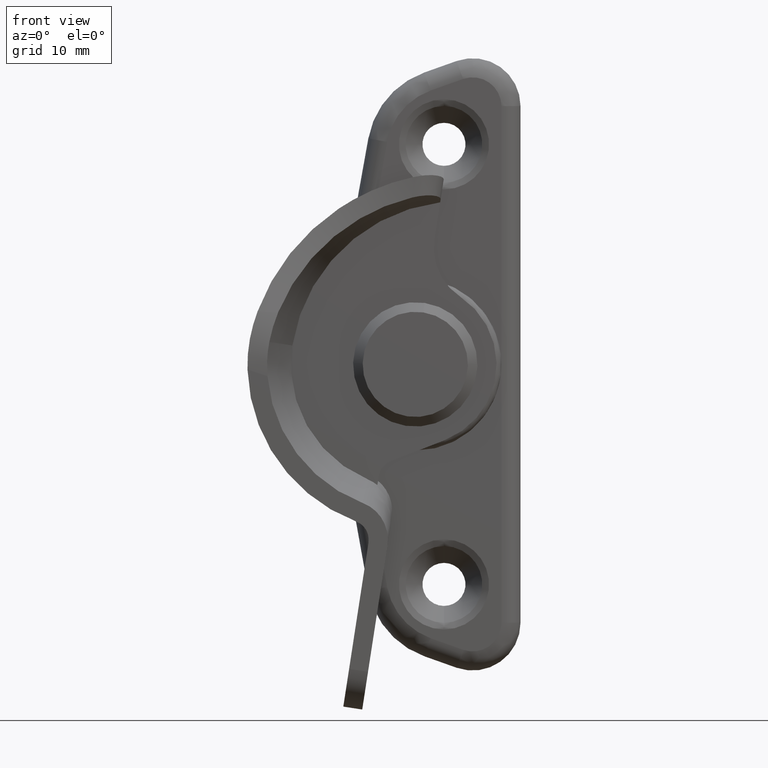
[diagram: clean part render]
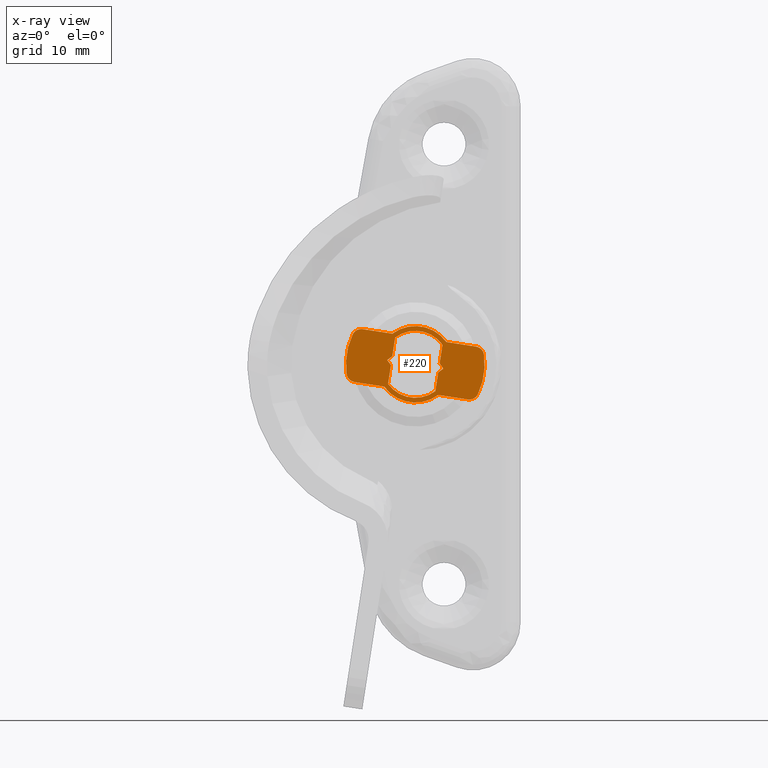
[diagram: x-ray — body ghosted, one internal face saturated and labeled with its STEP entity id]
A machine part, front view, then the same camera in x-ray: the body is ghosted and one INTERNAL B-rep face — a face not visible from any outside direction — is saturated and labeled: STEP entity #220.
In plain terms, the highlighted planar face has unit normal (0, 1, 0).
Its self-contained STEP definition (entity closure, byte-faithful):
#220=ADVANCED_FACE('',(#1047,#1048),#1046,.F.);
#1046=PLANE('',#2702);
#1047=FACE_OUTER_BOUND('',#2703,.T.);
#1048=FACE_BOUND('',#2704,.T.);
#2699=CARTESIAN_POINT('',(-1.40517494774E+01,3.20000000000E+00,-8.08957152702E+00));
#2700=DIRECTION('',(0.00000000000E+00,1.00000000000E+00,0.00000000000E+00));
#2701=DIRECTION('',(-9.88393614580E-01,0.00000000000E+00,1.51914655832E-01));
#2702=AXIS2_PLACEMENT_3D('',#2699,#2700,#2701);
#2703=EDGE_LOOP('',(#4258,#4259,#4260,#4261,#4262,#4263,#4264,#4265,#4266,#4267,#4268,#4269,#4270,#4271,#4272,#4273));
#2704=EDGE_LOOP('',(#4274,#4275,#4276,#4277,#4278,#4279,#4280,#4281,#4282,#4283));
#4258=ORIENTED_EDGE('',*,*,#5015,.F.);
#4259=ORIENTED_EDGE('',*,*,#5016,.F.);
#4260=ORIENTED_EDGE('',*,*,#4950,.F.);
#4261=ORIENTED_EDGE('',*,*,#5017,.T.);
#4262=ORIENTED_EDGE('',*,*,#5018,.T.);
#4263=ORIENTED_EDGE('',*,*,#4899,.F.);
#4264=ORIENTED_EDGE('',*,*,#4896,.F.);
#4265=ORIENTED_EDGE('',*,*,#4903,.F.);
#4266=ORIENTED_EDGE('',*,*,#5019,.F.);
#4267=ORIENTED_EDGE('',*,*,#5020,.F.);
#4268=ORIENTED_EDGE('',*,*,#5021,.F.);
#4269=ORIENTED_EDGE('',*,*,#5022,.T.);
#4270=ORIENTED_EDGE('',*,*,#5023,.T.);
#4271=ORIENTED_EDGE('',*,*,#4912,.F.);
#4272=ORIENTED_EDGE('',*,*,#4906,.F.);
#4273=ORIENTED_EDGE('',*,*,#4910,.F.);
#4274=ORIENTED_EDGE('',*,*,#5010,.F.);
#4275=ORIENTED_EDGE('',*,*,#5006,.T.);
#4276=ORIENTED_EDGE('',*,*,#5008,.T.);
#4277=ORIENTED_EDGE('',*,*,#4976,.F.);
#4278=ORIENTED_EDGE('',*,*,#4974,.F.);
#4279=ORIENTED_EDGE('',*,*,#4972,.F.);
#4280=ORIENTED_EDGE('',*,*,#5009,.T.);
#4281=ORIENTED_EDGE('',*,*,#5003,.T.);
#4282=ORIENTED_EDGE('',*,*,#5013,.F.);
#4283=ORIENTED_EDGE('',*,*,#5014,.F.);
#4896=EDGE_CURVE('',#5888,#5895,#5896,.T.);
#4899=EDGE_CURVE('',#5895,#5915,#5916,.T.);
#4903=EDGE_CURVE('',#5935,#5888,#5942,.T.);
#4906=EDGE_CURVE('',#5956,#5963,#5964,.T.);
#4910=EDGE_CURVE('',#5983,#5956,#5990,.T.);
#4912=EDGE_CURVE('',#5963,#6003,#6004,.T.);
#4950=EDGE_CURVE('',#6257,#6264,#6265,.T.);
#4972=EDGE_CURVE('',#6400,#6407,#6408,.T.);
#4974=EDGE_CURVE('',#6407,#6420,#6421,.T.);
#4976=EDGE_CURVE('',#6420,#6433,#6434,.T.);
#5003=EDGE_CURVE('',#6608,#6601,#6609,.T.);
#5006=EDGE_CURVE('',#6628,#6621,#6629,.T.);
#5008=EDGE_CURVE('',#6621,#6433,#6641,.T.);
#5009=EDGE_CURVE('',#6400,#6608,#6647,.T.);
#5010=EDGE_CURVE('',#6628,#6653,#6654,.T.);
#5013=EDGE_CURVE('',#6666,#6601,#6673,.T.);
#5014=EDGE_CURVE('',#6653,#6666,#6679,.T.);
#5015=EDGE_CURVE('',#6685,#5983,#6686,.T.);
#5016=EDGE_CURVE('',#6264,#6685,#6692,.T.);
#5017=EDGE_CURVE('',#6257,#6698,#6699,.T.);
#5018=EDGE_CURVE('',#6698,#5915,#6705,.T.);
#5019=EDGE_CURVE('',#6711,#5935,#6712,.T.);
#5020=EDGE_CURVE('',#6718,#6711,#6719,.T.);
#5021=EDGE_CURVE('',#6725,#6718,#6726,.T.);
#5022=EDGE_CURVE('',#6725,#6732,#6733,.T.);
#5023=EDGE_CURVE('',#6732,#6003,#6739,.T.);
#5888=VERTEX_POINT('',#8817);
#5895=VERTEX_POINT('',#8821);
#5896=CIRCLE('',#8825,7.25000000000E+00);
#5915=VERTEX_POINT('',#8834);
#5916=CIRCLE('',#8838,1.00000000000E+00);
#5935=VERTEX_POINT('',#8847);
#5942=CIRCLE('',#8854,1.00000000000E+00);
#5956=VERTEX_POINT('',#8861);
#5963=VERTEX_POINT('',#8865);
#5964=CIRCLE('',#8869,7.25000000000E+00);
#5983=VERTEX_POINT('',#8878);
#5990=CIRCLE('',#8885,1.00000000000E+00);
#6003=VERTEX_POINT('',#8891);
#6004=CIRCLE('',#8895,1.00000000000E+00);
#6257=VERTEX_POINT('',#9048);
#6264=VERTEX_POINT('',#9053);
#6265=CIRCLE('',#9057,4.00000000000E+00);
#6400=VERTEX_POINT('',#9135);
#6407=VERTEX_POINT('',#9139);
#6408=LINE('',#9140,#9141);
#6420=VERTEX_POINT('',#9146);
#6421=CIRCLE('',#9150,3.50000000000E+00);
#6433=VERTEX_POINT('',#9154);
#6434=LINE('',#9155,#9156);
#6601=VERTEX_POINT('',#9256);
#6608=VERTEX_POINT('',#9260);
#6609=LINE('',#9261,#9262);
#6621=VERTEX_POINT('',#9267);
#6628=VERTEX_POINT('',#9271);
#6629=LINE('',#9272,#9273);
#6641=LINE('',#9278,#9279);
#6647=LINE('',#9281,#9282);
#6653=VERTEX_POINT('',#9284);
#6654=LINE('',#9285,#9286);
#6666=VERTEX_POINT('',#9291);
#6673=LINE('',#9295,#9296);
#6679=CIRCLE('',#9301,3.50000000000E+00);
#6685=VERTEX_POINT('',#9302);
#6686=LINE('',#9303,#9304);
#6692=LINE('',#9306,#9307);
#6698=VERTEX_POINT('',#9309);
#6699=LINE('',#9310,#9311);
#6705=LINE('',#9313,#9314);
#6711=VERTEX_POINT('',#9316);
#6712=LINE('',#9317,#9318);
#6718=VERTEX_POINT('',#9320);
#6719=LINE('',#9321,#9322);
#6725=VERTEX_POINT('',#9324);
#6726=CIRCLE('',#9328,4.00000000000E+00);
#6732=VERTEX_POINT('',#9329);
#6733=LINE('',#9330,#9331);
#6739=LINE('',#9333,#9334);
#8817=CARTESIAN_POINT('',(-2.91794372156E+01,3.20000000000E+00,-1.00904968588E+00));
#8821=CARTESIAN_POINT('',(-2.85450416129E+01,3.20000000000E+00,3.11848204861E+00));
#8822=CARTESIAN_POINT('',(-2.20000000001E+01,3.20000000000E+00,2.10356686765E-11));
#8823=DIRECTION('',(0.00000000000E+00,1.00000000000E+00,0.00000000000E+00));
#8824=DIRECTION('',(-9.90267202139E-01,0.00000000000E+00,-1.39179267021E-01));
#8825=AXIS2_PLACEMENT_3D('',#8822,#8823,#8824);
#8834=CARTESIAN_POINT('',(-2.74903625967E+01,3.20000000000E+00,3.67674020821E+00));
#8835=CARTESIAN_POINT('',(-2.76422772525E+01,3.20000000000E+00,2.68834659363E+00));
#8836=DIRECTION('',(0.00000000000E+00,1.00000000000E+00,0.00000000000E+00));
#8837=DIRECTION('',(-9.88393614580E-01,-0.00000000000E+00,1.51914655832E-01));
#8838=AXIS2_PLACEMENT_3D('',#8835,#8836,#8837);
#8847=CARTESIAN_POINT('',(-2.83410846693E+01,3.20000000000E+00,-1.85826403344E+00));
#8851=CARTESIAN_POINT('',(-2.81891700135E+01,3.20000000000E+00,-8.69870418858E-01));
#8852=DIRECTION('',(0.00000000000E+00,1.00000000000E+00,0.00000000000E+00));
#8853=DIRECTION('',(-9.88393614580E-01,-0.00000000000E+00,1.51914655832E-01));
#8854=AXIS2_PLACEMENT_3D('',#8851,#8852,#8853);
#8861=CARTESIAN_POINT('',(-1.48205627846E+01,3.20000000000E+00,1.00904968592E+00));
#8865=CARTESIAN_POINT('',(-1.54549583874E+01,3.20000000000E+00,-3.11848204857E+00));
#8866=CARTESIAN_POINT('',(-2.20000000001E+01,3.20000000000E+00,2.10356686765E-11));
#8867=DIRECTION('',(0.00000000000E+00,1.00000000000E+00,0.00000000000E+00));
#8868=DIRECTION('',(-9.88393614580E-01,-0.00000000000E+00,1.51914655832E-01));
#8869=AXIS2_PLACEMENT_3D('',#8866,#8867,#8868);
#8878=CARTESIAN_POINT('',(-1.56589153309E+01,3.20000000000E+00,1.85826403348E+00));
#8882=CARTESIAN_POINT('',(-1.58108299868E+01,3.20000000000E+00,8.69870418900E-01));
#8883=DIRECTION('',(0.00000000000E+00,1.00000000000E+00,0.00000000000E+00));
#8884=DIRECTION('',(-9.88393614580E-01,-0.00000000000E+00,1.51914655832E-01));
#8885=AXIS2_PLACEMENT_3D('',#8882,#8883,#8884);
#8891=CARTESIAN_POINT('',(-1.65096374036E+01,3.20000000000E+00,-3.67674020817E+00));
#8892=CARTESIAN_POINT('',(-1.63577227478E+01,3.20000000000E+00,-2.68834659359E+00));
#8893=DIRECTION('',(0.00000000000E+00,1.00000000000E+00,0.00000000000E+00));
#8894=DIRECTION('',(-9.88393614580E-01,-0.00000000000E+00,1.51914655832E-01));
#8895=AXIS2_PLACEMENT_3D('',#8892,#8893,#8894);
#9048=CARTESIAN_POINT('',(-2.43659197763E+01,3.20000000000E+00,3.22527884263E+00));
#9053=CARTESIAN_POINT('',(-1.87747211575E+01,3.20000000000E+00,2.36591977622E+00));
#9054=CARTESIAN_POINT('',(-2.20000000001E+01,3.20000000000E+00,2.10356686765E-11));
#9055=DIRECTION('',(0.00000000000E+00,1.00000000000E+00,-0.00000000000E+00));
#9056=DIRECTION('',(9.88393614580E-01,-0.00000000000E+00,-1.51914655832E-01));
#9057=AXIS2_PLACEMENT_3D('',#9054,#9055,#9056);
#9135=CARTESIAN_POINT('',(-2.45423609068E+01,3.20000000000E+00,-8.46085989018E-02));
#9139=CARTESIAN_POINT('',(-2.48430974278E+01,3.20000000000E+00,-2.04127338122E+00));
#9140=CARTESIAN_POINT('',(-2.45423609068E+01,3.20000000000E+00,-8.46085989018E-02));
#9141=VECTOR('',#9142,1.97964126180E+00);
#9142=DIRECTION('',(-1.51914655832E-01,0.00000000000E+00,-9.88393614580E-01));
#9146=CARTESIAN_POINT('',(-1.99011293549E+01,3.20000000000E+00,-2.80084666039E+00));
#9147=CARTESIAN_POINT('',(-2.20000000001E+01,3.20000000000E+00,-5.79301515429E-11));
#9148=DIRECTION('',(0.00000000000E+00,-1.00000000000E+00,0.00000000000E+00));
#9149=DIRECTION('',(-8.12313550769E-01,-0.00000000000E+00,-5.83220966048E-01));
#9150=AXIS2_PLACEMENT_3D('',#9147,#9148,#9149);
#9154=CARTESIAN_POINT('',(-1.96003928339E+01,3.20000000000E+00,-8.44181877926E-01));
#9155=CARTESIAN_POINT('',(-1.99011293549E+01,3.20000000000E+00,-2.80084666039E+00));
#9156=VECTOR('',#9157,1.97964126194E+00);
#9157=DIRECTION('',(1.51914655832E-01,0.00000000000E+00,9.88393614580E-01));
#9256=CARTESIAN_POINT('',(-2.43996071662E+01,3.20000000000E+00,8.44181878084E-01));
#9260=CARTESIAN_POINT('',(-2.49353792750E+01,3.20000000000E+00,4.51163509883E-01));
#9261=CARTESIAN_POINT('',(-2.49353792750E+01,3.20000000000E+00,4.51163509883E-01));
#9262=VECTOR('',#9263,6.64466094165E-01);
#9263=DIRECTION('',(8.06319710652E-01,0.00000000000E+00,5.91479944051E-01));
#9267=CARTESIAN_POINT('',(-1.90646207253E+01,3.20000000000E+00,-4.51163509842E-01));
#9271=CARTESIAN_POINT('',(-1.94576390933E+01,3.20000000000E+00,8.46085987859E-02));
#9272=CARTESIAN_POINT('',(-1.94576390933E+01,3.20000000000E+00,8.46085987859E-02));
#9273=VECTOR('',#9274,6.64466093970E-01);
#9274=DIRECTION('',(5.91479944051E-01,0.00000000000E+00,-8.06319710652E-01));
#9278=CARTESIAN_POINT('',(-1.90646207253E+01,3.20000000000E+00,-4.51163509842E-01));
#9279=VECTOR('',#9280,6.64466093969E-01);
#9280=DIRECTION('',(-8.06319710652E-01,0.00000000000E+00,-5.91479944051E-01));
#9281=CARTESIAN_POINT('',(-2.45423609068E+01,3.20000000000E+00,-8.46085989018E-02));
#9282=VECTOR('',#9283,6.64466094165E-01);
#9283=DIRECTION('',(-5.91479944051E-01,0.00000000000E+00,8.06319710652E-01));
#9284=CARTESIAN_POINT('',(-1.91569025724E+01,3.20000000000E+00,2.04127338111E+00));
#9285=CARTESIAN_POINT('',(-1.94576390933E+01,3.20000000000E+00,8.46085987859E-02));
#9286=VECTOR('',#9287,1.97964126180E+00);
#9287=DIRECTION('',(1.51914655832E-01,0.00000000000E+00,9.88393614580E-01));
#9291=CARTESIAN_POINT('',(-2.40988706453E+01,3.20000000000E+00,2.80084666027E+00));
#9295=CARTESIAN_POINT('',(-2.40988706453E+01,3.20000000000E+00,2.80084666027E+00));
#9296=VECTOR('',#9297,1.97964126166E+00);
#9297=DIRECTION('',(-1.51914655832E-01,0.00000000000E+00,-9.88393614580E-01));
#9298=CARTESIAN_POINT('',(-2.20000000001E+01,3.20000000000E+00,-5.79301515429E-11));
#9299=DIRECTION('',(0.00000000000E+00,-1.00000000000E+00,0.00000000000E+00));
#9300=DIRECTION('',(-1.51914655832E-01,-0.00000000000E+00,-9.88393614580E-01));
#9301=AXIS2_PLACEMENT_3D('',#9298,#9299,#9300);
#9302=CARTESIAN_POINT('',(-1.88071368430E+01,3.20000000000E+00,2.34214108452E+00));
#9303=CARTESIAN_POINT('',(-1.88071368430E+01,3.20000000000E+00,2.34214108452E+00));
#9304=VECTOR('',#9305,3.18519005546E+00);
#9305=DIRECTION('',(9.88393614580E-01,0.00000000000E+00,-1.51914655832E-01));
#9306=CARTESIAN_POINT('',(-1.87747211575E+01,3.20000000000E+00,2.36591977622E+00));
#9307=VECTOR('',#9308,4.02020253552E-02);
#9308=DIRECTION('',(-8.06319710652E-01,0.00000000000E+00,-5.91479944051E-01));
#9309=CARTESIAN_POINT('',(-2.43421410846E+01,3.20000000000E+00,3.19286315718E+00));
#9310=CARTESIAN_POINT('',(-2.43659197763E+01,3.20000000000E+00,3.22527884263E+00));
#9311=VECTOR('',#9312,4.02020253552E-02);
#9312=DIRECTION('',(5.91479944051E-01,0.00000000000E+00,-8.06319710652E-01));
#9313=CARTESIAN_POINT('',(-2.43421410846E+01,3.20000000000E+00,3.19286315718E+00));
#9314=VECTOR('',#9315,3.18519005546E+00);
#9315=DIRECTION('',(-9.88393614580E-01,0.00000000000E+00,1.51914655832E-01));
#9316=CARTESIAN_POINT('',(-2.51928631573E+01,3.20000000000E+00,-2.34214108447E+00));
#9317=CARTESIAN_POINT('',(-2.51928631573E+01,3.20000000000E+00,-2.34214108447E+00));
#9318=VECTOR('',#9319,3.18519005546E+00);
#9319=DIRECTION('',(-9.88393614580E-01,0.00000000000E+00,1.51914655832E-01));
#9320=CARTESIAN_POINT('',(-2.52252788427E+01,3.20000000000E+00,-2.36591977618E+00));
#9321=CARTESIAN_POINT('',(-2.52252788427E+01,3.20000000000E+00,-2.36591977618E+00));
#9322=VECTOR('',#9323,4.02020253552E-02);
#9323=DIRECTION('',(8.06319710652E-01,0.00000000000E+00,5.91479944051E-01));
#9324=CARTESIAN_POINT('',(-1.96340802239E+01,3.20000000000E+00,-3.22527884259E+00));
#9325=CARTESIAN_POINT('',(-2.20000000001E+01,3.20000000000E+00,2.10356686765E-11));
#9326=DIRECTION('',(0.00000000000E+00,1.00000000000E+00,-0.00000000000E+00));
#9327=DIRECTION('',(9.88393614580E-01,-0.00000000000E+00,-1.51914655832E-01));
#9328=AXIS2_PLACEMENT_3D('',#9325,#9326,#9327);
#9329=CARTESIAN_POINT('',(-1.96578589156E+01,3.20000000000E+00,-3.19286315713E+00));
#9330=CARTESIAN_POINT('',(-1.96340802239E+01,3.20000000000E+00,-3.22527884259E+00));
#9331=VECTOR('',#9332,4.02020253552E-02);
#9332=DIRECTION('',(-5.91479944051E-01,0.00000000000E+00,8.06319710652E-01));
#9333=CARTESIAN_POINT('',(-1.96578589156E+01,3.20000000000E+00,-3.19286315713E+00));
#9334=VECTOR('',#9335,3.18519005546E+00);
#9335=DIRECTION('',(9.88393614580E-01,0.00000000000E+00,-1.51914655832E-01));